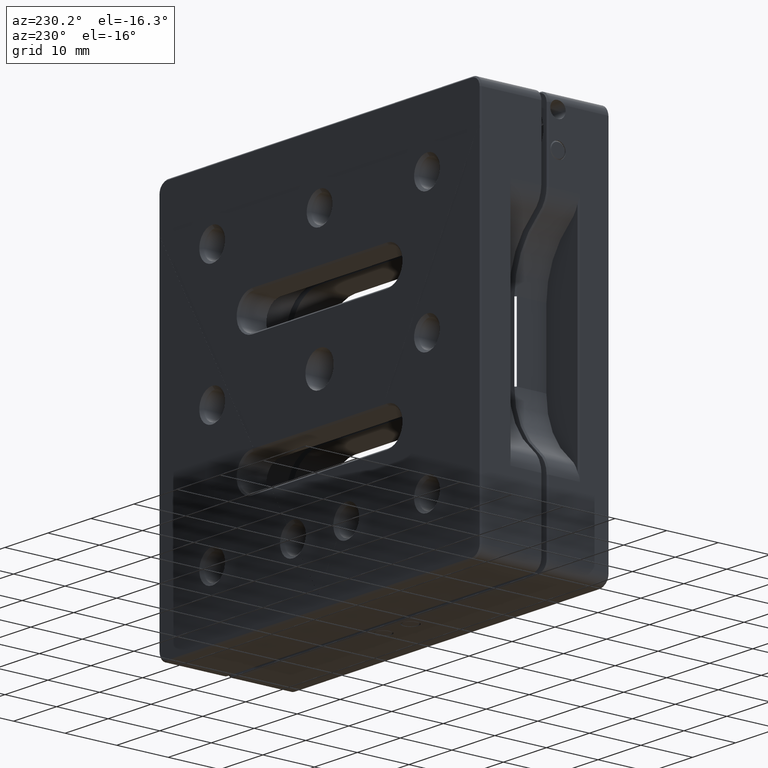
[diagram: clean part render]
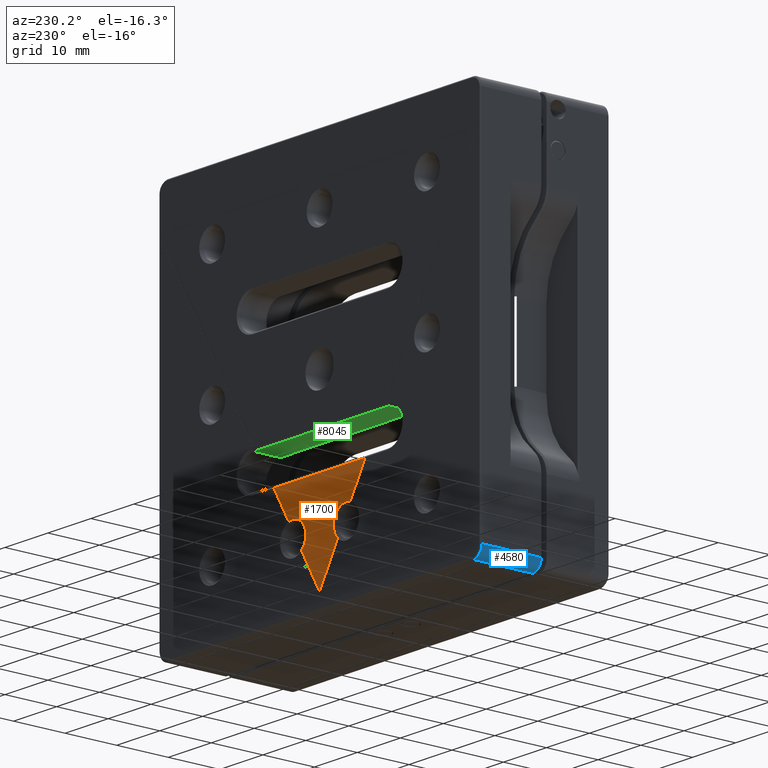
[diagram: same view with three faces highlighted in distinct colors, each labeled with its STEP entity id]
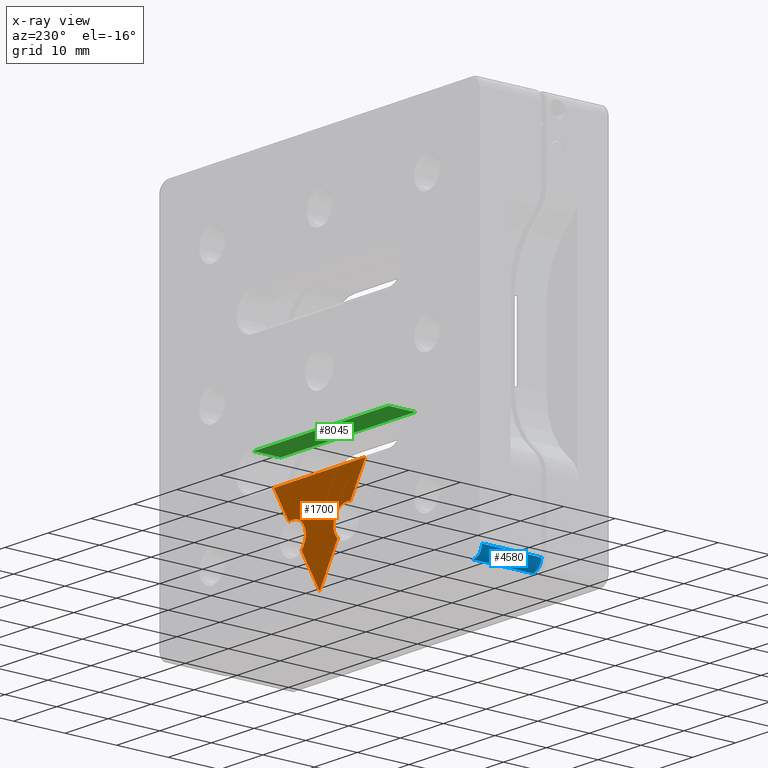
[diagram: x-ray of the same camera — body ghosted, the three highlighted faces saturated]
A machine part, auxiliary view with three faces highlighted in distinct colors.
The next image is the same camera in x-ray (body ghosted, the three faces saturated) — at least one of them is partly hidden behind the body in this view.
Their STEP definitions:

[orange] entity #1700 — the highlighted planar face has unit normal (-0, -1, -0).
#79 = DIRECTION ( 'NONE',  ( 2.577839154037636682E-16, 1.000000000000000000, 5.551115123125782702E-17 ) ) ;
#134 = AXIS2_PLACEMENT_3D ( 'NONE', #2143, #2090, #2830 ) ;
#149 = LINE ( 'NONE', #1460, #7172 ) ;
#175 = AXIS2_PLACEMENT_3D ( 'NONE', #8229, #79, #8255 ) ;
#291 = CARTESIAN_POINT ( 'NONE',  ( 4.195935732192626055, 18.99103273201166786, -27.23242612654878059 ) ) ;
#470 = VERTEX_POINT ( 'NONE', #7280 ) ;
#514 = ORIENTED_EDGE ( 'NONE', *, *, #4550, .T. ) ;
#524 = CARTESIAN_POINT ( 'NONE',  ( 6.200000000000065015, 18.99103273201166431, -25.00000000000003197 ) ) ;
#571 = VERTEX_POINT ( 'NONE', #2704 ) ;
#1227 = CARTESIAN_POINT ( 'NONE',  ( -6.199999999999934452, 18.99103273201167141, -25.00000000000003197 ) ) ;
#1364 = VERTEX_POINT ( 'NONE', #5724 ) ;
#1406 = PLANE ( 'NONE',  #134 ) ;
#1460 = CARTESIAN_POINT ( 'NONE',  ( 6.546920626910499331E-14, 18.99103273201166786, -16.10000000000003340 ) ) ;
#1465 = AXIS2_PLACEMENT_3D ( 'NONE', #7618, #8306, #4232 ) ;
#1621 = VECTOR ( 'NONE', #6870, 1000.000000000000114 ) ;
#1700 = ADVANCED_FACE ( 'NONE', ( #7279 ), #1406, .F. ) ;
#1731 = CIRCLE ( 'NONE', #175, 2.999999999999999112 ) ;
#1796 = ORIENTED_EDGE ( 'NONE', *, *, #8712, .T. ) ;
#1991 = VERTEX_POINT ( 'NONE', #4876 ) ;
#1995 = EDGE_CURVE ( 'NONE', #1991, #8372, #149, .T. ) ;
#2090 = DIRECTION ( 'NONE',  ( -2.577839154037636682E-16, -1.000000000000000000, -5.551115123125780853E-17 ) ) ;
#2130 = ORIENTED_EDGE ( 'NONE', *, *, #1995, .T. ) ;
#2143 = CARTESIAN_POINT ( 'NONE',  ( 6.658343255363953998E-14, 18.99103273201166431, -2.742250870824136655E-14 ) ) ;
#2153 = CARTESIAN_POINT ( 'NONE',  ( -7.131305603759536815, 18.99103273201166786, -22.14821636998776100 ) ) ;
#2167 = VECTOR ( 'NONE', #5513, 1000.000000000000114 ) ;
#2176 = CARTESIAN_POINT ( 'NONE',  ( 5.725691089715828123E-14, 18.99103273201166786, -34.50000000000002132 ) ) ;
#2272 = LINE ( 'NONE', #2176, #2167 ) ;
#2704 = CARTESIAN_POINT ( 'NONE',  ( -4.195935732192506151, 18.99103273201166786, -27.23242612654878414 ) ) ;
#2830 = DIRECTION ( 'NONE',  ( 6.920660152388527348E-17, -5.551115123125782702E-17, 1.000000000000000000 ) ) ;
#2981 = ORIENTED_EDGE ( 'NONE', *, *, #8282, .F. ) ;
#3004 = AXIS2_PLACEMENT_3D ( 'NONE', #1227, #3210, #5922 ) ;
#3210 = DIRECTION ( 'NONE',  ( 2.577839154037636682E-16, 1.000000000000000000, 5.551115123125782702E-17 ) ) ;
#3305 = EDGE_CURVE ( 'NONE', #3683, #1364, #7900, .T. ) ;
#3581 = LINE ( 'NONE', #6192, #6111 ) ;
#3683 = VERTEX_POINT ( 'NONE', #291 ) ;
#3997 = CARTESIAN_POINT ( 'NONE',  ( 5.725691089715828123E-14, 18.99103273201166786, -34.50000000000002132 ) ) ;
#4232 = DIRECTION ( 'NONE',  ( 0.0000000000000000000, 0.0000000000000000000, -1.000000000000000000 ) ) ;
#4331 = ORIENTED_EDGE ( 'NONE', *, *, #5994, .F. ) ;
#4358 = CIRCLE ( 'NONE', #3004, 2.999999999999999112 ) ;
#4495 = VECTOR ( 'NONE', #5276, 999.9999999999998863 ) ;
#4550 = EDGE_CURVE ( 'NONE', #3683, #470, #7554, .T. ) ;
#4652 = EDGE_CURVE ( 'NONE', #8372, #7295, #3581, .T. ) ;
#4681 = CARTESIAN_POINT ( 'NONE',  ( -6.199999999999934452, 18.99103273201167141, -22.00000000000003197 ) ) ;
#4876 = CARTESIAN_POINT ( 'NONE',  ( -10.62324495308905092, 18.99103273201167141, -16.10000000000003695 ) ) ;
#4899 = VERTEX_POINT ( 'NONE', #2153 ) ;
#5180 = ORIENTED_EDGE ( 'NONE', *, *, #6661, .T. ) ;
#5212 = DIRECTION ( 'NONE',  ( 0.0000000000000000000, 0.0000000000000000000, -1.000000000000000000 ) ) ;
#5276 = DIRECTION ( 'NONE',  ( -0.5000000000000002220, 1.671262534332286635E-16, -0.8660254037844385966 ) ) ;
#5467 = ORIENTED_EDGE ( 'NONE', *, *, #4652, .T. ) ;
#5513 = DIRECTION ( 'NONE',  ( -0.4999999999999999445, 7.097811911405049732E-17, 0.8660254037844385966 ) ) ;
#5657 = ORIENTED_EDGE ( 'NONE', *, *, #8453, .F. ) ;
#5724 = CARTESIAN_POINT ( 'NONE',  ( 6.200000000000065015, 18.99103273201166431, -22.00000000000003197 ) ) ;
#5735 = CIRCLE ( 'NONE', #1465, 2.999999999999999112 ) ;
#5922 = DIRECTION ( 'NONE',  ( 0.0000000000000000000, 0.0000000000000000000, -1.000000000000000000 ) ) ;
#5994 = EDGE_CURVE ( 'NONE', #7168, #571, #1731, .T. ) ;
#6111 = VECTOR ( 'NONE', #6788, 999.9999999999998863 ) ;
#6192 = CARTESIAN_POINT ( 'NONE',  ( 5.725691089715828123E-14, 18.99103273201166786, -34.50000000000002132 ) ) ;
#6435 = CARTESIAN_POINT ( 'NONE',  ( 10.62324495308916639, 18.99103273201166431, -16.10000000000003340 ) ) ;
#6661 = EDGE_CURVE ( 'NONE', #470, #571, #2272, .T. ) ;
#6788 = DIRECTION ( 'NONE',  ( -0.5000000000000002220, 1.671262534332286635E-16, -0.8660254037844385966 ) ) ;
#6841 = CARTESIAN_POINT ( 'NONE',  ( 5.725691089715828123E-14, 18.99103273201166786, -34.50000000000002132 ) ) ;
#6870 = DIRECTION ( 'NONE',  ( -0.4999999999999999445, 7.097811911405049732E-17, 0.8660254037844385966 ) ) ;
#6878 = DIRECTION ( 'NONE',  ( 1.000000000000000000, -2.381043725472791608E-16, 7.171406736960403111E-18 ) ) ;
#7124 = LINE ( 'NONE', #6841, #1621 ) ;
#7168 = VERTEX_POINT ( 'NONE', #4681 ) ;
#7172 = VECTOR ( 'NONE', #6878, 1000.000000000000000 ) ;
#7204 = DIRECTION ( 'NONE',  ( 2.577839154037636682E-16, 1.000000000000000000, 5.551115123125782702E-17 ) ) ;
#7279 = FACE_OUTER_BOUND ( 'NONE', #7764, .T. ) ;
#7280 = CARTESIAN_POINT ( 'NONE',  ( 5.899163437313508832E-14, 18.99103273201166786, -34.50000000000002842 ) ) ;
#7295 = VERTEX_POINT ( 'NONE', #8101 ) ;
#7554 = LINE ( 'NONE', #3997, #4495 ) ;
#7558 = ORIENTED_EDGE ( 'NONE', *, *, #3305, .F. ) ;
#7618 = CARTESIAN_POINT ( 'NONE',  ( 6.200000000000065015, 18.99103273201166431, -25.00000000000003197 ) ) ;
#7764 = EDGE_LOOP ( 'NONE', ( #5467, #2981, #7558, #514, #5180, #4331, #5657, #1796, #2130 ) ) ;
#7900 = CIRCLE ( 'NONE', #8359, 2.999999999999999112 ) ;
#8101 = CARTESIAN_POINT ( 'NONE',  ( 7.131305603759654943, 18.99103273201166431, -22.14821636998775745 ) ) ;
#8229 = CARTESIAN_POINT ( 'NONE',  ( -6.199999999999934452, 18.99103273201167141, -25.00000000000003197 ) ) ;
#8255 = DIRECTION ( 'NONE',  ( 0.0000000000000000000, 0.0000000000000000000, -1.000000000000000000 ) ) ;
#8282 = EDGE_CURVE ( 'NONE', #1364, #7295, #5735, .T. ) ;
#8306 = DIRECTION ( 'NONE',  ( 2.577839154037636682E-16, 1.000000000000000000, 5.551115123125782702E-17 ) ) ;
#8359 = AXIS2_PLACEMENT_3D ( 'NONE', #524, #7204, #5212 ) ;
#8372 = VERTEX_POINT ( 'NONE', #6435 ) ;
#8453 = EDGE_CURVE ( 'NONE', #4899, #7168, #4358, .T. ) ;
#8712 = EDGE_CURVE ( 'NONE', #4899, #1991, #7124, .T. ) ;

[blue] entity #4580 — the highlighted cylindrical surface (edge-blend (fillet) strip) has radius 2 mm, axis along (0, 1, 0).
#17 = VECTOR ( 'NONE', #2887, 1000.000000000000000 ) ;
#262 = DIRECTION ( 'NONE',  ( 0.0000000000000000000, 0.0000000000000000000, 1.000000000000000000 ) ) ;
#367 = CARTESIAN_POINT ( 'NONE',  ( -35.49999999999992895, 18.74103273201166431, -35.50000000000002132 ) ) ;
#805 = CARTESIAN_POINT ( 'NONE',  ( -35.49999999999992895, 6.991032732011676742, -37.50000000000002842 ) ) ;
#1793 = DIRECTION ( 'NONE',  ( -2.577839154037636682E-16, -1.000000000000000000, -5.551115123125782702E-17 ) ) ;
#1863 = LINE ( 'NONE', #805, #17 ) ;
#2160 = EDGE_CURVE ( 'NONE', #6850, #7135, #4529, .T. ) ;
#2253 = VECTOR ( 'NONE', #2309, 1000.000000000000000 ) ;
#2309 = DIRECTION ( 'NONE',  ( -2.577839154037636682E-16, -1.000000000000000000, -5.551115123125782702E-17 ) ) ;
#2315 = AXIS2_PLACEMENT_3D ( 'NONE', #5637, #7786, #262 ) ;
#2672 = ORIENTED_EDGE ( 'NONE', *, *, #6147, .T. ) ;
#2767 = CARTESIAN_POINT ( 'NONE',  ( -35.49999999999992895, 6.991032732011676742, -35.50000000000002132 ) ) ;
#2768 = ORIENTED_EDGE ( 'NONE', *, *, #6560, .F. ) ;
#2796 = CYLINDRICAL_SURFACE ( 'NONE', #2867, 2.000000000000001776 ) ;
#2867 = AXIS2_PLACEMENT_3D ( 'NONE', #2767, #8150, #3445 ) ;
#2887 = DIRECTION ( 'NONE',  ( 2.577839154037636682E-16, 1.000000000000000000, 5.551115123125782702E-17 ) ) ;
#3445 = DIRECTION ( 'NONE',  ( 0.0000000000000000000, 0.0000000000000000000, -1.000000000000000000 ) ) ;
#3673 = VERTEX_POINT ( 'NONE', #5794 ) ;
#4223 = EDGE_LOOP ( 'NONE', ( #6770, #4844, #2768, #2672 ) ) ;
#4454 = CARTESIAN_POINT ( 'NONE',  ( -37.49999999999992895, 18.74103273201166431, -35.50000000000002132 ) ) ;
#4529 = CIRCLE ( 'NONE', #7041, 2.000000000000001776 ) ;
#4580 = ADVANCED_FACE ( 'NONE', ( #4797 ), #2796, .T. ) ;
#4797 = FACE_OUTER_BOUND ( 'NONE', #4223, .T. ) ;
#4844 = ORIENTED_EDGE ( 'NONE', *, *, #2160, .T. ) ;
#5637 = CARTESIAN_POINT ( 'NONE',  ( -35.49999999999992895, 7.241032732011676742, -35.50000000000002132 ) ) ;
#5794 = CARTESIAN_POINT ( 'NONE',  ( -37.49999999999992895, 7.241032732011676742, -35.50000000000002132 ) ) ;
#6136 = EDGE_CURVE ( 'NONE', #6850, #3673, #7009, .T. ) ;
#6147 = EDGE_CURVE ( 'NONE', #7586, #3673, #7438, .T. ) ;
#6560 = EDGE_CURVE ( 'NONE', #7586, #7135, #1863, .T. ) ;
#6770 = ORIENTED_EDGE ( 'NONE', *, *, #6136, .F. ) ;
#6850 = VERTEX_POINT ( 'NONE', #4454 ) ;
#7009 = LINE ( 'NONE', #7668, #2253 ) ;
#7041 = AXIS2_PLACEMENT_3D ( 'NONE', #367, #1793, #8575 ) ;
#7135 = VERTEX_POINT ( 'NONE', #7813 ) ;
#7438 = CIRCLE ( 'NONE', #2315, 2.000000000000001776 ) ;
#7586 = VERTEX_POINT ( 'NONE', #8609 ) ;
#7668 = CARTESIAN_POINT ( 'NONE',  ( -37.49999999999992895, 6.991032732011676742, -35.50000000000002132 ) ) ;
#7786 = DIRECTION ( 'NONE',  ( 2.577839154037636682E-16, 1.000000000000000000, 5.551115123125782702E-17 ) ) ;
#7813 = CARTESIAN_POINT ( 'NONE',  ( -35.49999999999992895, 18.74103273201166431, -37.50000000000002842 ) ) ;
#8150 = DIRECTION ( 'NONE',  ( 2.577839154037636682E-16, 1.000000000000000000, 5.551115123125782702E-17 ) ) ;
#8575 = DIRECTION ( 'NONE',  ( 0.0000000000000000000, 0.0000000000000000000, 1.000000000000000000 ) ) ;
#8609 = CARTESIAN_POINT ( 'NONE',  ( -35.49999999999992895, 7.241032732011676742, -37.50000000000002842 ) ) ;

[green] entity #8045 — the highlighted planar face has unit normal (-0, -0, 1).
#34 = VERTEX_POINT ( 'NONE', #3302 ) ;
#191 = FACE_OUTER_BOUND ( 'NONE', #4168, .T. ) ;
#364 = AXIS2_PLACEMENT_3D ( 'NONE', #8515, #8419, #970 ) ;
#841 = EDGE_CURVE ( 'NONE', #1216, #34, #3727, .T. ) ;
#970 = DIRECTION ( 'NONE',  ( -1.000000000000000000, 2.381043725472791608E-16, -7.171406736960403111E-18 ) ) ;
#1011 = ORIENTED_EDGE ( 'NONE', *, *, #3069, .T. ) ;
#1216 = VERTEX_POINT ( 'NONE', #3982 ) ;
#1445 = LINE ( 'NONE', #4271, #3246 ) ;
#1630 = EDGE_CURVE ( 'NONE', #34, #5894, #3890, .T. ) ;
#1695 = PLANE ( 'NONE',  #364 ) ;
#1749 = DIRECTION ( 'NONE',  ( -2.577839154037636682E-16, -1.000000000000000000, -5.551115123125782702E-17 ) ) ;
#1925 = ORIENTED_EDGE ( 'NONE', *, *, #841, .T. ) ;
#1997 = VECTOR ( 'NONE', #2654, 1000.000000000000000 ) ;
#2654 = DIRECTION ( 'NONE',  ( -1.000000000000000000, 2.381043725472791608E-16, -7.171406736960403111E-18 ) ) ;
#3061 = CARTESIAN_POINT ( 'NONE',  ( 15.70000000000006501, 6.991032732011663420, -9.200000000000031264 ) ) ;
#3069 = EDGE_CURVE ( 'NONE', #5894, #8839, #1445, .T. ) ;
#3246 = VECTOR ( 'NONE', #7720, 1000.000000000000000 ) ;
#3302 = CARTESIAN_POINT ( 'NONE',  ( 15.70000000000006501, 13.49103273201166253, -9.200000000000031264 ) ) ;
#3388 = DIRECTION ( 'NONE',  ( 1.000000000000000000, -2.381043725472791608E-16, 7.171406736960403111E-18 ) ) ;
#3727 = LINE ( 'NONE', #3061, #7121 ) ;
#3794 = ORIENTED_EDGE ( 'NONE', *, *, #7287, .T. ) ;
#3890 = LINE ( 'NONE', #8823, #1997 ) ;
#3982 = CARTESIAN_POINT ( 'NONE',  ( 15.70000000000006501, 18.69103273201165649, -9.200000000000031264 ) ) ;
#4168 = EDGE_LOOP ( 'NONE', ( #1011, #3794, #1925, #5453 ) ) ;
#4271 = CARTESIAN_POINT ( 'NONE',  ( -15.69999999999993356, 6.991032732011670525, -9.200000000000031264 ) ) ;
#4772 = CARTESIAN_POINT ( 'NONE',  ( 15.70000000000006501, 18.69103273201165649, -9.200000000000031264 ) ) ;
#5453 = ORIENTED_EDGE ( 'NONE', *, *, #1630, .T. ) ;
#5894 = VERTEX_POINT ( 'NONE', #7457 ) ;
#6173 = VECTOR ( 'NONE', #3388, 1000.000000000000000 ) ;
#7121 = VECTOR ( 'NONE', #1749, 1000.000000000000000 ) ;
#7287 = EDGE_CURVE ( 'NONE', #8839, #1216, #8628, .T. ) ;
#7457 = CARTESIAN_POINT ( 'NONE',  ( -15.69999999999993356, 13.49103273201166964, -9.200000000000031264 ) ) ;
#7705 = CARTESIAN_POINT ( 'NONE',  ( -15.69999999999993356, 18.69103273201166360, -9.200000000000031264 ) ) ;
#7720 = DIRECTION ( 'NONE',  ( 2.577839154037636682E-16, 1.000000000000000000, 5.551115123125782702E-17 ) ) ;
#8045 = ADVANCED_FACE ( 'NONE', ( #191 ), #1695, .F. ) ;
#8419 = DIRECTION ( 'NONE',  ( -7.171406736960416977E-18, -5.551115123125780853E-17, 1.000000000000000000 ) ) ;
#8515 = CARTESIAN_POINT ( 'NONE',  ( 15.70000000000006501, 6.991032732011663420, -9.200000000000031264 ) ) ;
#8628 = LINE ( 'NONE', #4772, #6173 ) ;
#8823 = CARTESIAN_POINT ( 'NONE',  ( 15.70000000000006501, 13.49103273201166253, -9.200000000000031264 ) ) ;
#8839 = VERTEX_POINT ( 'NONE', #7705 ) ;